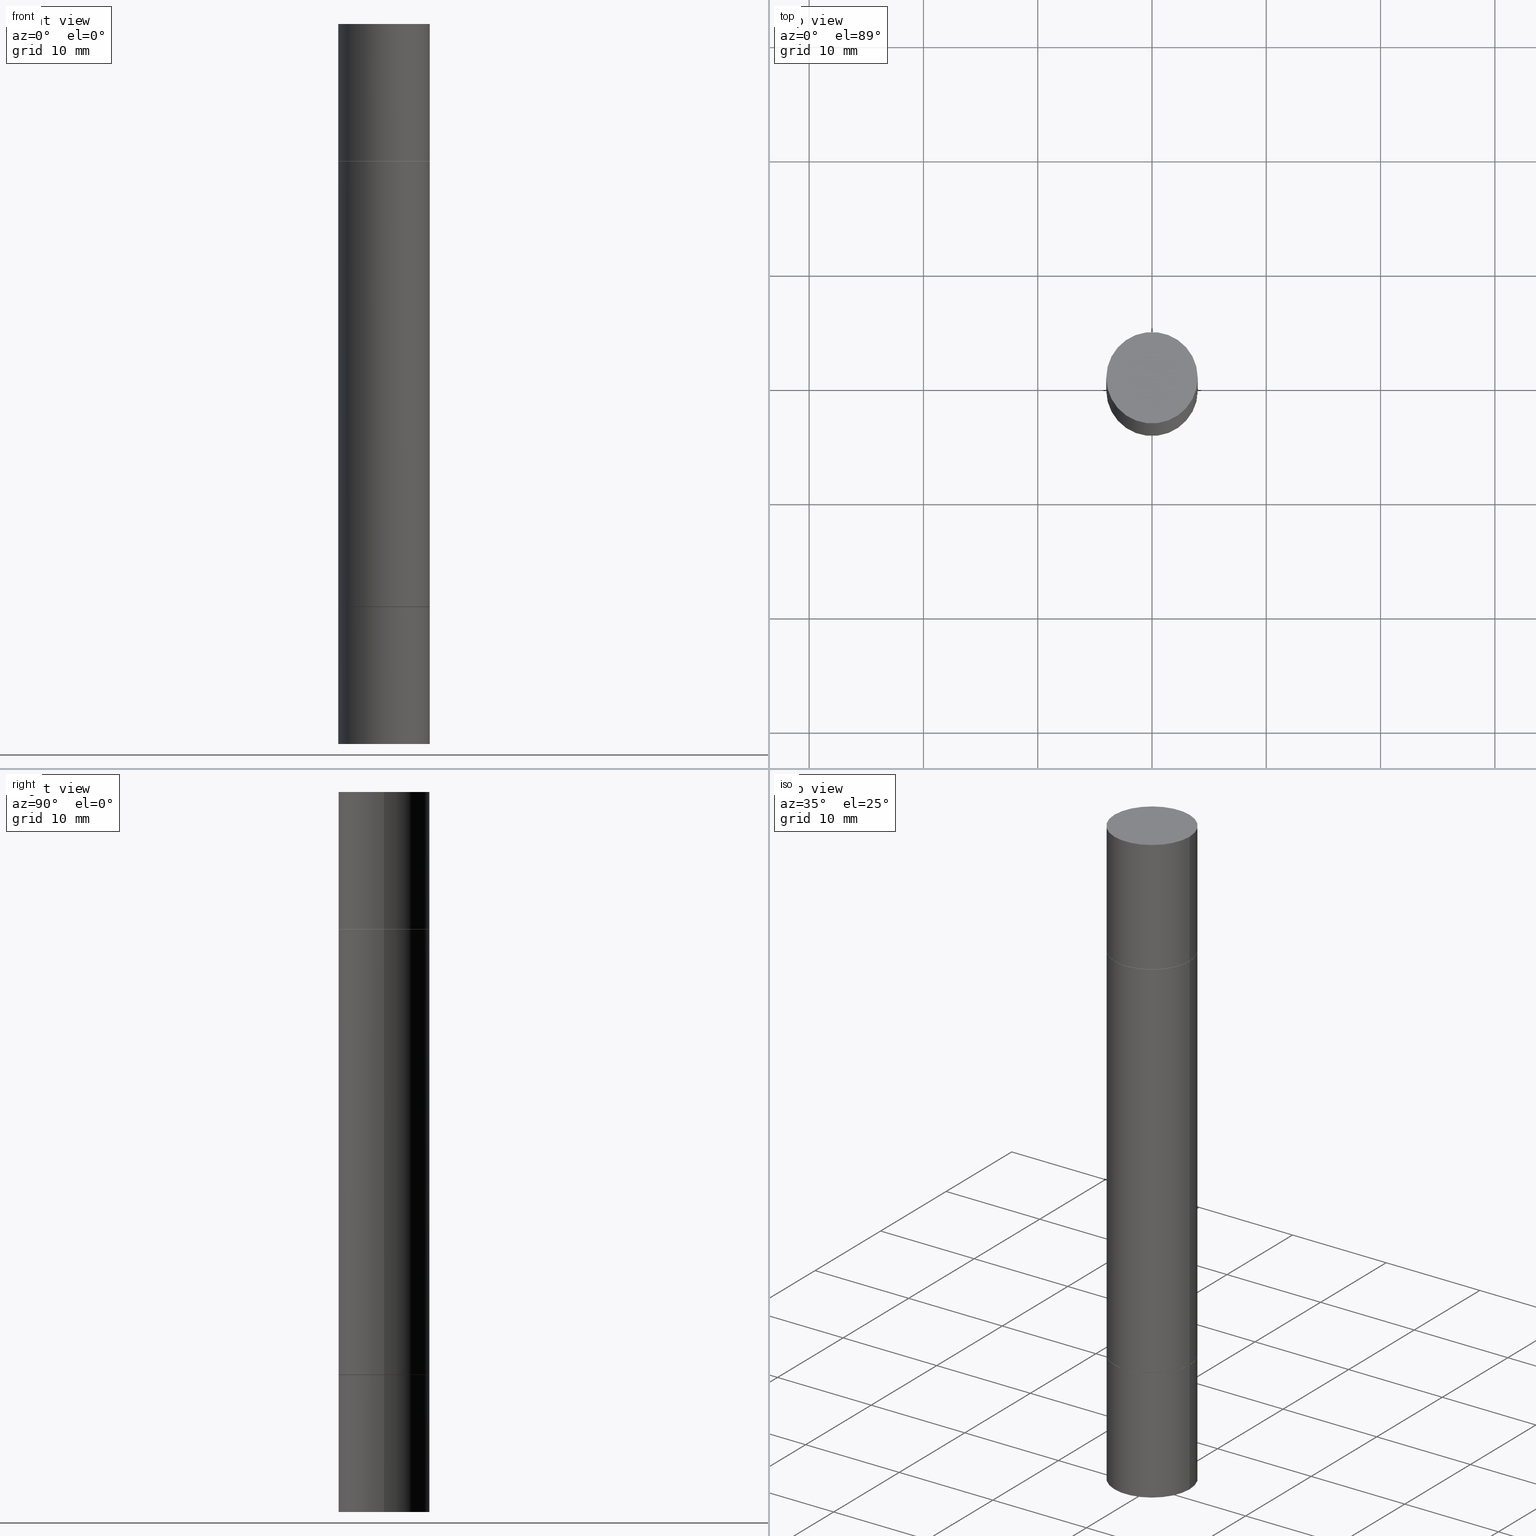
[diagram: canonical four-view strip — front | top / right | iso, engineering-drawing reading convention]
A machine part, canonical four-view strip (front | top / right | iso — engineering-drawing reading convention). The complete STEP part file that produces these views, byte-faithful:
ISO-10303-21;
HEADER;
FILE_DESCRIPTION (( 'STEP AP203' ),
    '1' );
FILE_NAME ('48937.STEP',
    '2024-03-04T15:49:40',
    ( '' ),
    ( '' ),
    'SwSTEP 2.0',
    'SolidWorks 2023',
    '' );
FILE_SCHEMA (( 'CONFIG_CONTROL_DESIGN' ));
ENDSEC;

DATA;
#1 = AXIS2_PLACEMENT_3D ( 'NONE', #396, #657, #606 ) ;
#2 = ORIENTED_EDGE ( 'NONE', *, *, #278, .T. ) ;
#3 = CIRCLE ( 'NONE', #155, 0.1575000000000000011 ) ;
#4 = ORIENTED_EDGE ( 'NONE', *, *, #618, .T. ) ;
#5 = DIRECTION ( 'NONE',  ( 1.000000000000000000, -6.982962677686265922E-15, 4.876176775795935793E-29 ) ) ;
#6 = EDGE_LOOP ( 'NONE', ( #229, #204, #585, #586 ) ) ;
#7 = EDGE_CURVE ( 'NONE', #89, #382, #326, .T. ) ;
#8 = ADVANCED_FACE ( 'NONE', ( #221 ), #637, .F. ) ;
#9 = DIRECTION ( 'NONE',  ( -2.445468806185136877E-29, -3.492890411551753071E-15, -1.000000000000000000 ) ) ;
#10 = VECTOR ( 'NONE', #134, 39.37007874015748143 ) ;
#11 = ORGANIZATION ( 'UNSPECIFIED', 'UNSPECIFIED', '' ) ;
#12 = DIRECTION ( 'NONE',  ( 1.000000000000000000, -6.982962677686267499E-15, 0.000000000000000000 ) ) ;
#13 = APPROVAL_ROLE ( '' ) ;
#14 = ORIENTED_EDGE ( 'NONE', *, *, #222, .T. ) ;
#15 = DIRECTION ( 'NONE',  ( -2.445468806185136597E-29, -3.492890411551752677E-15, -1.000000000000000000 ) ) ;
#16 = APPROVAL_STATUS ( 'not_yet_approved' ) ;
#17 = DIRECTION ( 'NONE',  ( -2.445468806185136597E-29, -3.492890411551752677E-15, -1.000000000000000000 ) ) ;
#18 = PERSON_AND_ORGANIZATION_ROLE ( 'creator' ) ;
#19 = CARTESIAN_POINT ( 'NONE',  ( 4.910256815939136430E-29, -7.010545380263152499E-15, -2.007900000000000240 ) ) ;
#20 = AXIS2_PLACEMENT_3D ( 'NONE', #293, #459, #453 ) ;
#21 = CC_DESIGN_APPROVAL ( #581, ( #579 ) ) ;
#22 = CC_DESIGN_DATE_AND_TIME_ASSIGNMENT ( #597, #113, ( #220 ) ) ;
#23 = CARTESIAN_POINT ( 'NONE',  ( -0.1575000000000000011, 2.572551809600735932E-16, -0.4723999999999995980 ) ) ;
#24 = DIRECTION ( 'NONE',  ( 1.000000000000000000, -6.982962677686265922E-15, 9.839502134516470631E-33 ) ) ;
#25 = DIRECTION ( 'NONE',  ( 2.445468806185136597E-29, 3.492890411551752677E-15, 1.000000000000000000 ) ) ;
#26 = PERSON_AND_ORGANIZATION ( #514, #11 ) ;
#27 = DIRECTION ( 'NONE',  ( -2.445468806185136597E-29, 3.491481338843145583E-15, 1.000000000000000000 ) ) ;
#28 = EDGE_CURVE ( 'NONE', #44, #619, #152, .T. ) ;
#29 = CARTESIAN_POINT ( 'NONE',  ( 6.065496279980994755E-29, -8.659921164732655335E-15, -2.480300000000000171 ) ) ;
#30 = DIRECTION ( 'NONE',  ( 2.445468806185136597E-29, 3.492890411551752677E-15, 1.000000000000000000 ) ) ;
#31 = AXIS2_PLACEMENT_3D ( 'NONE', #646, #70, #12 ) ;
#32 = CIRCLE ( 'NONE', #245, 0.1574999999999998901 ) ;
#33 = ORIENTED_EDGE ( 'NONE', *, *, #443, .T. ) ;
#34 = DIRECTION ( 'NONE',  ( 1.000000000000000000, -6.982962677686268288E-15, 0.000000000000000000 ) ) ;
#35 = ADVANCED_FACE ( 'NONE', ( #100 ), #599, .T. ) ;
#36 = ORIENTED_EDGE ( 'NONE', *, *, #222, .F. ) ;
#37 = DIRECTION ( 'NONE',  ( 1.000000000000000000, -6.982962677686267499E-15, 0.000000000000000000 ) ) ;
#38 = CARTESIAN_POINT ( 'NONE',  ( 4.910256815939136991E-29, -7.010545380263154077E-15, -2.007900000000000240 ) ) ;
#39 = CIRCLE ( 'NONE', #440, 0.1575000000000000011 ) ;
#40 = EDGE_LOOP ( 'NONE', ( #623, #641, #157, #247 ) ) ;
#41 = ADVANCED_FACE ( 'NONE', ( #534 ), #540, .T. ) ;
#42 = DIRECTION ( 'NONE',  ( 0.000000000000000000, 0.000000000000000000, 1.000000000000000000 ) ) ;
#43 = ORIENTED_EDGE ( 'NONE', *, *, #99, .T. ) ;
#44 = VERTEX_POINT ( 'NONE', #126 ) ;
#45 = CARTESIAN_POINT ( 'NONE',  ( 0.1575000000000000011, -2.748110590633054853E-15, -0.4723999999999995980 ) ) ;
#46 = DIMENSIONAL_EXPONENTS ( 1.000000000000000000, 0.000000000000000000, 0.000000000000000000, 0.000000000000000000, 0.000000000000000000, 0.000000000000000000, 0.000000000000000000 ) ;
#47 = DIRECTION ( 'NONE',  ( -2.438088387897959769E-29, -3.492890411551753071E-15, -1.000000000000000000 ) ) ;
#48 = ORIENTED_EDGE ( 'NONE', *, *, #410, .T. ) ;
#49 = CLOSED_SHELL ( 'NONE', ( #132, #35, #230, #161, #592, #129, #286, #654 ) ) ;
#50 = PLANE ( 'NONE',  #224 ) ;
#51 = ORIENTED_EDGE ( 'NONE', *, *, #610, .F. ) ;
#52 = APPROVAL_PERSON_ORGANIZATION ( #280, #581, #330 ) ;
#53 = EDGE_CURVE ( 'NONE', #616, #382, #82, .T. ) ;
#54 = EDGE_LOOP ( 'NONE', ( #545, #375 ) ) ;
#55 = EDGE_LOOP ( 'NONE', ( #444, #633, #640, #526 ) ) ;
#56 = DIRECTION ( 'NONE',  ( -2.445468806185136597E-29, 3.491481338843145583E-15, 1.000000000000000000 ) ) ;
#57 = ORIENTED_EDGE ( 'NONE', *, *, #125, .T. ) ;
#58 = DIRECTION ( 'NONE',  ( -2.445468806185136597E-29, -3.492890411551752677E-15, -1.000000000000000000 ) ) ;
#59 = VECTOR ( 'NONE', #504, 39.37007874015748143 ) ;
#60 = CIRCLE ( 'NONE', #233, 0.1575000000000000011 ) ;
#61 = ADVANCED_FACE ( 'NONE', ( #662 ), #118, .T. ) ;
#62 = CARTESIAN_POINT ( 'NONE',  ( -0.1575000000000000011, 2.572551809600735932E-16, -0.4723999999999995980 ) ) ;
#63 = FACE_OUTER_BOUND ( 'NONE', #55, .T. ) ;
#64 = PERSON_AND_ORGANIZATION_ROLE ( 'creator' ) ;
#65 = FACE_OUTER_BOUND ( 'NONE', #414, .T. ) ;
#66 = PERSON_AND_ORGANIZATION_ROLE ( 'classification_officer' ) ;
#67 = DATE_AND_TIME ( #175, #502 ) ;
#68 = LINE ( 'NONE', #604, #59 ) ;
#69 = FACE_OUTER_BOUND ( 'NONE', #277, .T. ) ;
#70 = DIRECTION ( 'NONE',  ( -2.445468806185136597E-29, 3.491481338843145583E-15, 1.000000000000000000 ) ) ;
#71 = EDGE_CURVE ( 'NONE', #308, #106, #324, .T. ) ;
#72 = CONICAL_SURFACE ( 'NONE', #186, 0.1565000000000000002, 0.7853981633972775267 ) ;
#73 = AXIS2_PLACEMENT_3D ( 'NONE', #561, #508, #187 ) ;
#74 = DIRECTION ( 'NONE',  ( 1.000000000000000000, -6.982962677686267499E-15, 0.000000000000000000 ) ) ;
#75 = DATE_AND_TIME ( #652, #95 ) ;
#76 = DIRECTION ( 'NONE',  ( 1.000000000000000000, -6.982962677686265922E-15, 0.000000000000000000 ) ) ;
#77 = FACE_OUTER_BOUND ( 'NONE', #262, .T. ) ;
#78 = CARTESIAN_POINT ( 'NONE',  ( 4.910256815939136991E-29, -1.648293968897466781E-15, -0.4723999999999993205 ) ) ;
#79 = CARTESIAN_POINT ( 'NONE',  ( -0.1565000000000000002, -5.898545998798597482E-15, -2.007900000000000240 ) ) ;
#80 = ORIENTED_EDGE ( 'NONE', *, *, #342, .F. ) ;
#81 = DIRECTION ( 'NONE',  ( 1.000000000000000000, -6.982962677686268288E-15, 0.000000000000000000 ) ) ;
#82 = CIRCLE ( 'NONE', #480, 0.1575000000000000011 ) ;
#83 = DIRECTION ( 'NONE',  ( 2.445468806185136597E-29, 3.492890411551752677E-15, 1.000000000000000000 ) ) ;
#84 = CIRCLE ( 'NONE', #344, 0.1575000000000000011 ) ;
#85 = DIRECTION ( 'NONE',  ( -1.000000000000000000, 6.982962677686265922E-15, -4.876176775795935793E-29 ) ) ;
#86 = FACE_OUTER_BOUND ( 'NONE', #40, .T. ) ;
#87 = LINE ( 'NONE', #306, #120 ) ;
#88 = DIRECTION ( 'NONE',  ( 1.000000000000000000, -6.982962677686268288E-15, 0.000000000000000000 ) ) ;
#89 = VERTEX_POINT ( 'NONE', #335 ) ;
#90 = CARTESIAN_POINT ( 'NONE',  ( 4.910256815939136430E-29, -1.648293968897467768E-15, -0.4723999999999995980 ) ) ;
#91 = LINE ( 'NONE', #486, #391 ) ;
#92 = APPROVAL ( #275, 'UNSPECIFIED' ) ;
#93 = ADVANCED_FACE ( 'NONE', ( #63 ), #495, .T. ) ;
#94 = ORIENTED_EDGE ( 'NONE', *, *, #189, .T. ) ;
#95 = LOCAL_TIME ( 10, 49, 40.00000000000000000, #505 ) ;
#96 = VERTEX_POINT ( 'NONE', #629 ) ;
#97 = ORIENTED_EDGE ( 'NONE', *, *, #447, .F. ) ;
#98 = FACE_OUTER_BOUND ( 'NONE', #489, .T. ) ;
#99 = EDGE_CURVE ( 'NONE', #619, #546, #158, .T. ) ;
#100 = FACE_OUTER_BOUND ( 'NONE', #549, .T. ) ;
#101 = LINE ( 'NONE', #374, #179 ) ;
#102 = CARTESIAN_POINT ( 'NONE',  ( 4.910256815939136430E-29, -7.010545380263152499E-15, -2.007900000000000240 ) ) ;
#103 = ORIENTED_EDGE ( 'NONE', *, *, #433, .F. ) ;
#104 = FACE_OUTER_BOUND ( 'NONE', #135, .T. ) ;
#105 = AXIS2_PLACEMENT_3D ( 'NONE', #450, #568, #609 ) ;
#106 = VERTEX_POINT ( 'NONE', #145 ) ;
#107 = CIRCLE ( 'NONE', #130, 0.1575000000000000011 ) ;
#108 =( CONVERSION_BASED_UNIT ( 'INCH', #314 ) LENGTH_UNIT ( ) NAMED_UNIT ( #46 ) );
#109 = ORIENTED_EDGE ( 'NONE', *, *, #184, .F. ) ;
#110 = DIRECTION ( 'NONE',  ( 2.438088387897959769E-29, 3.492890411551753071E-15, 1.000000000000000000 ) ) ;
#111 = DIRECTION ( 'NONE',  ( 0.000000000000000000, 1.000000000000000000, -3.492185875197449524E-15 ) ) ;
#112 = CC_DESIGN_DATE_AND_TIME_ASSIGNMENT ( #442, #651, ( #591 ) ) ;
#113 = DATE_TIME_ROLE ( 'creation_date' ) ;
#114 = ORIENTED_EDGE ( 'NONE', *, *, #133, .T. ) ;
#115 = ORIENTED_EDGE ( 'NONE', *, *, #116, .T. ) ;
#116 = EDGE_CURVE ( 'NONE', #546, #494, #91, .T. ) ;
#117 = PERSON_AND_ORGANIZATION ( #514, #11 ) ;
#118 = CYLINDRICAL_SURFACE ( 'NONE', #1, 0.1575000000000000011 ) ;
#119 = AXIS2_PLACEMENT_3D ( 'NONE', #19, #434, #562 ) ;
#120 = VECTOR ( 'NONE', #636, 39.37007874015748143 ) ;
#121 = DIRECTION ( 'NONE',  ( -2.445468806185136597E-29, 3.491481338843145583E-15, 1.000000000000000000 ) ) ;
#122 = PERSON_AND_ORGANIZATION_ROLE ( 'design_owner' ) ;
#123 = DIRECTION ( 'NONE',  ( -2.445468806185136597E-29, 3.491481338843145583E-15, 1.000000000000000000 ) ) ;
#124 = ADVANCED_FACE ( 'NONE', ( #413 ), #246, .T. ) ;
#125 = EDGE_CURVE ( 'NONE', #529, #264, #613, .T. ) ;
#126 = CARTESIAN_POINT ( 'NONE',  ( -0.1565000000000000002, -5.729422284531128791E-16, -0.4723999999999993205 ) ) ;
#127 = AXIS2_PLACEMENT_3D ( 'NONE', #603, #558, #111 ) ;
#128 = DIRECTION ( 'NONE',  ( 2.445468806185136597E-29, 3.492890411551752677E-15, 1.000000000000000000 ) ) ;
#129 = ADVANCED_FACE ( 'NONE', ( #664 ), #520, .T. ) ;
#130 = AXIS2_PLACEMENT_3D ( 'NONE', #420, #196, #580 ) ;
#131 = CARTESIAN_POINT ( 'NONE',  ( 4.910256815939136430E-29, -1.648293968897467768E-15, -0.4723999999999995980 ) ) ;
#132 = ADVANCED_FACE ( 'NONE', ( #464 ), #72, .T. ) ;
#133 = EDGE_CURVE ( 'NONE', #674, #215, #68, .T. ) ;
#134 = DIRECTION ( 'NONE',  ( -2.445468806185136877E-29, -3.492890411551753071E-15, -1.000000000000000000 ) ) ;
#135 = EDGE_LOOP ( 'NONE', ( #477, #250 ) ) ;
#136 = CARTESIAN_POINT ( 'NONE',  ( 0.1575000000000000011, -8.106870520659896184E-15, -2.006899999999999906 ) ) ;
#137 = ADVANCED_BREP_SHAPE_REPRESENTATION ( '48937', ( #200, #437, #203, #439, #656, #392 ), #516 ) ;
#138 = CLOSED_SHELL ( 'NONE', ( #583, #41, #241, #634, #329, #260 ) ) ;
#139 = CARTESIAN_POINT ( 'NONE',  ( 0.1575000000000000011, -9.761485247987819407E-15, -2.480299999999999727 ) ) ;
#140 = DIRECTION ( 'NONE',  ( 2.445468806185136597E-29, 3.492890411551752677E-15, 1.000000000000000000 ) ) ;
#141 = AXIS2_PLACEMENT_3D ( 'NONE', #231, #121, #165 ) ;
#142 = VECTOR ( 'NONE', #511, 39.37007874015748143 ) ;
#143 = ORIENTED_EDGE ( 'NONE', *, *, #7, .T. ) ;
#144 = PLANE ( 'NONE',  #661 ) ;
#145 = CARTESIAN_POINT ( 'NONE',  ( 0.1575000000000000011, -9.759737786468242027E-15, -2.480300000000000171 ) ) ;
#146 = DIRECTION ( 'NONE',  ( 0.000000000000000000, 1.000000000000000000, -3.469013325287955660E-15 ) ) ;
#147 = ORIENTED_EDGE ( 'NONE', *, *, #576, .F. ) ;
#148 = EDGE_LOOP ( 'NONE', ( #315, #14, #385, #225 ) ) ;
#149 = CARTESIAN_POINT ( 'NONE',  ( 0.1575000000000000011, -1.098069160216006353E-15, 5.463695987328526437E-16 ) ) ;
#150 = DIRECTION ( 'NONE',  ( 2.445468806185136597E-29, 3.492890411551752677E-15, 1.000000000000000000 ) ) ;
#151 = ORIENTED_EDGE ( 'NONE', *, *, #184, .T. ) ;
#152 = CIRCLE ( 'NONE', #551, 0.1565000000000000002 ) ;
#153 = CIRCLE ( 'NONE', #554, 0.1575000000000000011 ) ;
#154 = ADVANCED_FACE ( 'NONE', ( #183 ), #507, .T. ) ;
#155 = AXIS2_PLACEMENT_3D ( 'NONE', #304, #192, #256 ) ;
#156 = APPLICATION_PROTOCOL_DEFINITION ( 'international standard', 'config_control_design', 1994, #254 ) ;
#157 = ORIENTED_EDGE ( 'NONE', *, *, #547, .T. ) ;
#158 = LINE ( 'NONE', #362, #492 ) ;
#159 = DIRECTION ( 'NONE',  ( 1.000000000000000000, -6.982962677686265922E-15, 0.000000000000000000 ) ) ;
#160 = ORIENTED_EDGE ( 'NONE', *, *, #367, .F. ) ;
#161 = ADVANCED_FACE ( 'NONE', ( #242 ), #563, .F. ) ;
#162 = FACE_OUTER_BOUND ( 'NONE', #271, .T. ) ;
#163 = ORIENTED_EDGE ( 'NONE', *, *, #206, .T. ) ;
#164 = ORIENTED_EDGE ( 'NONE', *, *, #537, .F. ) ;
#165 = DIRECTION ( 'NONE',  ( 1.000000000000000000, -6.982962677686268288E-15, 0.000000000000000000 ) ) ;
#166 = CLOSED_SHELL ( 'NONE', ( #124, #622, #648, #93 ) ) ;
#167 = AXIS2_PLACEMENT_3D ( 'NONE', #131, #408, #24 ) ;
#168 = FACE_OUTER_BOUND ( 'NONE', #54, .T. ) ;
#169 = AXIS2_PLACEMENT_3D ( 'NONE', #38, #415, #37 ) ;
#170 = CARTESIAN_POINT ( 'NONE',  ( 1.099816621735635798E-15, 0.1574999999999983635, -0.4724000000000001531 ) ) ;
#171 = CC_DESIGN_PERSON_AND_ORGANIZATION_ASSIGNMENT ( #644, #122, ( #318 ) ) ;
#172 = FACE_OUTER_BOUND ( 'NONE', #377, .T. ) ;
#173 = DIRECTION ( 'NONE',  ( 1.000000000000000000, -6.982962677686267499E-15, 0.000000000000000000 ) ) ;
#174 = PERSON_AND_ORGANIZATION ( #514, #11 ) ;
#175 = CALENDAR_DATE ( 2024, 4, 3 ) ;
#176 = ORIENTED_EDGE ( 'NONE', *, *, #213, .T. ) ;
#177 = CARTESIAN_POINT ( 'NONE',  ( 0.000000000000000000, -8.661668626252231138E-15, -2.480299999999999727 ) ) ;
#178 = AXIS2_PLACEMENT_3D ( 'NONE', #460, #665, #88 ) ;
#179 = VECTOR ( 'NONE', #417, 39.37007874015748143 ) ;
#180 = CARTESIAN_POINT ( 'NONE',  ( 6.065496279980994755E-29, 1.747461519580534218E-18, 5.463695987328526437E-16 ) ) ;
#181 = EDGE_CURVE ( 'NONE', #674, #522, #455, .T. ) ;
#182 = CARTESIAN_POINT ( 'NONE',  ( 4.907811347132950827E-29, -1.651786859309018332E-15, -0.4733999999999996544 ) ) ;
#183 = FACE_OUTER_BOUND ( 'NONE', #303, .T. ) ;
#184 = EDGE_CURVE ( 'NONE', #619, #44, #660, .T. ) ;
#185 = CARTESIAN_POINT ( 'NONE',  ( -0.1574999999999998901, -7.581140191603216936E-15, -2.480299999999999727 ) ) ;
#186 = AXIS2_PLACEMENT_3D ( 'NONE', #595, #600, #539 ) ;
#187 = DIRECTION ( 'NONE',  ( 1.000000000000000000, -6.982962677686268288E-15, 0.000000000000000000 ) ) ;
#188 = LOCAL_TIME ( 10, 49, 40.00000000000000000, #279 ) ;
#189 = EDGE_CURVE ( 'NONE', #538, #529, #153, .T. ) ;
#190 = CARTESIAN_POINT ( 'NONE',  ( 0.000000000000000000, 0.000000000000000000, 0.000000000000000000 ) ) ;
#191 = DIRECTION ( 'NONE',  ( 2.445468806185136597E-29, 3.492890411551752677E-15, 1.000000000000000000 ) ) ;
#192 = DIRECTION ( 'NONE',  ( 2.445468806185136597E-29, 3.492890411551752677E-15, 1.000000000000000000 ) ) ;
#193 = EDGE_LOOP ( 'NONE', ( #151, #327 ) ) ;
#194 = DIRECTION ( 'NONE',  ( 2.438088387897960049E-29, -3.491481338843145188E-15, -1.000000000000000000 ) ) ;
#195 = AXIS2_PLACEMENT_3D ( 'NONE', #351, #519, #34 ) ;
#196 = DIRECTION ( 'NONE',  ( -2.445468806185136597E-29, 3.491481338843145583E-15, 1.000000000000000000 ) ) ;
#197 = DIRECTION ( 'NONE',  ( 1.000000000000000000, -6.982962677686267499E-15, 0.000000000000000000 ) ) ;
#198 = AXIS2_PLACEMENT_3D ( 'NONE', #596, #15, #339 ) ;
#199 = LOCAL_TIME ( 10, 49, 40.00000000000000000, #228 ) ;
#200 = MANIFOLD_SOLID_BREP ( 'Body-Move/Copy2[1]', #312 ) ;
#201 = ORIENTED_EDGE ( 'NONE', *, *, #301, .F. ) ;
#202 = CARTESIAN_POINT ( 'NONE',  ( 0.1565000000000000002, -8.103379039321054754E-15, -2.007900000000000240 ) ) ;
#203 = MANIFOLD_SOLID_BREP ( 'Mirror1[3]', #323 ) ;
#204 = ORIENTED_EDGE ( 'NONE', *, *, #625, .T. ) ;
#205 = EDGE_CURVE ( 'NONE', #106, #611, #302, .T. ) ;
#206 = EDGE_CURVE ( 'NONE', #488, #522, #237, .T. ) ;
#207 = DIRECTION ( 'NONE',  ( 1.000000000000000000, -6.982962677686261189E-15, 0.000000000000000000 ) ) ;
#208 = DIRECTION ( 'NONE',  ( 1.000000000000000000, 0.000000000000000000, 0.000000000000000000 ) ) ;
#209 = ORIENTED_EDGE ( 'NONE', *, *, #116, .F. ) ;
#210 = DIRECTION ( 'NONE',  ( 1.000000000000000000, -6.982962677686268288E-15, 0.000000000000000000 ) ) ;
#211 = AXIS2_PLACEMENT_3D ( 'NONE', #347, #123, #647 ) ;
#212 = AXIS2_PLACEMENT_3D ( 'NONE', #345, #607, #457 ) ;
#213 = EDGE_CURVE ( 'NONE', #529, #538, #257, .T. ) ;
#214 = FACE_OUTER_BOUND ( 'NONE', #422, .T. ) ;
#215 = VERTEX_POINT ( 'NONE', #294 ) ;
#216 = EDGE_LOOP ( 'NONE', ( #235, #316 ) ) ;
#217 = CARTESIAN_POINT ( 'NONE',  ( 0.1575000000000000011, -8.110362001998739191E-15, -2.007900000000000240 ) ) ;
#218 = CARTESIAN_POINT ( 'NONE',  ( 4.910256815939136430E-29, -1.648293968897467768E-15, -0.4723999999999995980 ) ) ;
#219 = ORIENTED_EDGE ( 'NONE', *, *, #253, .T. ) ;
#220 = PRODUCT_DEFINITION ( 'UNKNOWN', '', #579, #425 ) ;
#221 = FACE_OUTER_BOUND ( 'NONE', #632, .T. ) ;
#222 = EDGE_CURVE ( 'NONE', #96, #517, #307, .T. ) ;
#223 = AXIS2_PLACEMENT_3D ( 'NONE', #468, #418, #74 ) ;
#224 = AXIS2_PLACEMENT_3D ( 'NONE', #102, #584, #5 ) ;
#225 = ORIENTED_EDGE ( 'NONE', *, *, #389, .F. ) ;
#226 = ORIENTED_EDGE ( 'NONE', *, *, #278, .F. ) ;
#227 = APPROVAL_ROLE ( '' ) ;
#228 = COORDINATED_UNIVERSAL_TIME_OFFSET ( 5, 0, .BEHIND. ) ;
#229 = ORIENTED_EDGE ( 'NONE', *, *, #28, .F. ) ;
#230 = ADVANCED_FACE ( 'NONE', ( #252 ), #672, .T. ) ;
#231 = CARTESIAN_POINT ( 'NONE',  ( 4.907811347132950827E-29, -7.007053898924308703E-15, -2.006899999999999906 ) ) ;
#232 = AXIS2_PLACEMENT_3D ( 'NONE', #398, #458, #605 ) ;
#233 = AXIS2_PLACEMENT_3D ( 'NONE', #90, #463, #667 ) ;
#234 = PLANE ( 'NONE',  #105 ) ;
#235 = ORIENTED_EDGE ( 'NONE', *, *, #452, .F. ) ;
#236 = PLANE ( 'NONE',  #212 ) ;
#237 = LINE ( 'NONE', #346, #243 ) ;
#238 = DIRECTION ( 'NONE',  ( 1.000000000000000000, -6.982962677686268288E-15, 0.000000000000000000 ) ) ;
#239 = PERSON_AND_ORGANIZATION_ROLE ( 'design_supplier' ) ;
#240 = CC_DESIGN_PERSON_AND_ORGANIZATION_ASSIGNMENT ( #174, #66, ( #591 ) ) ;
#241 = ADVANCED_FACE ( 'NONE', ( #65 ), #556, .F. ) ;
#242 = FACE_OUTER_BOUND ( 'NONE', #193, .T. ) ;
#243 = VECTOR ( 'NONE', #521, 39.37007874015748143 ) ;
#244 = DIRECTION ( 'NONE',  ( 1.000000000000000000, -6.982962677686268288E-15, 0.000000000000000000 ) ) ;
#245 = AXIS2_PLACEMENT_3D ( 'NONE', #363, #370, #146 ) ;
#246 = CYLINDRICAL_SURFACE ( 'NONE', #20, 0.1575000000000000011 ) ;
#247 = ORIENTED_EDGE ( 'NONE', *, *, #181, .T. ) ;
#248 = DIRECTION ( 'NONE',  ( 1.000000000000000000, -6.982962677686267499E-15, 0.000000000000000000 ) ) ;
#249 = DIRECTION ( 'NONE',  ( 1.000000000000000000, -6.982962677686261189E-15, 0.000000000000000000 ) ) ;
#250 = ORIENTED_EDGE ( 'NONE', *, *, #443, .F. ) ;
#251 = CARTESIAN_POINT ( 'NONE',  ( -0.1575000000000000011, 2.572551809600735932E-16, 5.463695987328556019E-16 ) ) ;
#252 = FACE_OUTER_BOUND ( 'NONE', #6, .T. ) ;
#253 = EDGE_CURVE ( 'NONE', #494, #517, #626, .T. ) ;
#254 = APPLICATION_CONTEXT ( 'configuration controlled 3d designs of mechanical parts and assemblies' ) ;
#255 = ORIENTED_EDGE ( 'NONE', *, *, #349, .F. ) ;
#256 = DIRECTION ( 'NONE',  ( 1.000000000000000000, -6.982962677686268288E-15, 0.000000000000000000 ) ) ;
#257 = CIRCLE ( 'NONE', #569, 0.1575000000000000011 ) ;
#258 = FACE_OUTER_BOUND ( 'NONE', #620, .T. ) ;
#259 = APPROVAL_PERSON_ORGANIZATION ( #650, #409, #227 ) ;
#260 = ADVANCED_FACE ( 'NONE', ( #172 ), #379, .T. ) ;
#261 = ORIENTED_EDGE ( 'NONE', *, *, #610, .T. ) ;
#262 = EDGE_LOOP ( 'NONE', ( #4, #490 ) ) ;
#263 = DIRECTION ( 'NONE',  ( 1.000000000000000000, -6.982962677686265922E-15, 4.876176775795935232E-29 ) ) ;
#264 = VERTEX_POINT ( 'NONE', #548 ) ;
#265 = AXIS2_PLACEMENT_3D ( 'NONE', #337, #56, #273 ) ;
#266 = AXIS2_PLACEMENT_3D ( 'NONE', #29, #608, #350 ) ;
#267 =( LENGTH_UNIT ( ) NAMED_UNIT ( * ) SI_UNIT ( $, .METRE. ) );
#268 = EDGE_LOOP ( 'NONE', ( #176, #94 ) ) ;
#269 = DIRECTION ( 'NONE',  ( -1.000000000000000000, 6.982962677686265922E-15, -9.839502134516470631E-33 ) ) ;
#270 = ORIENTED_EDGE ( 'NONE', *, *, #205, .T. ) ;
#271 = EDGE_LOOP ( 'NONE', ( #582, #226 ) ) ;
#272 = ORIENTED_EDGE ( 'NONE', *, *, #618, .F. ) ;
#273 = DIRECTION ( 'NONE',  ( 1.000000000000000000, -6.982962677686267499E-15, 0.000000000000000000 ) ) ;
#274 = AXIS2_PLACEMENT_3D ( 'NONE', #566, #359, #197 ) ;
#275 = APPROVAL_STATUS ( 'not_yet_approved' ) ;
#276 = CC_DESIGN_APPROVAL ( #409, ( #591 ) ) ;
#277 = EDGE_LOOP ( 'NONE', ( #311, #295, #272, #432 ) ) ;
#278 = EDGE_CURVE ( 'NONE', #96, #473, #333, .T. ) ;
#279 = COORDINATED_UNIVERSAL_TIME_OFFSET ( 5, 0, .BEHIND. ) ;
#280 = PERSON_AND_ORGANIZATION ( #514, #11 ) ;
#281 = CARTESIAN_POINT ( 'NONE',  ( 4.910256815939136430E-29, -1.648293968897467768E-15, -0.4723999999999995980 ) ) ;
#282 = FACE_OUTER_BOUND ( 'NONE', #578, .T. ) ;
#283 = CALENDAR_DATE ( 2024, 4, 3 ) ;
#284 = APPROVAL_DATE_TIME ( #67, #92 ) ;
#285 = CARTESIAN_POINT ( 'NONE',  ( 4.910256815939136991E-29, -1.648293968897466781E-15, -0.4723999999999993205 ) ) ;
#286 = ADVANCED_FACE ( 'NONE', ( #282 ), #402, .T. ) ;
#287 = AXIS2_PLACEMENT_3D ( 'NONE', #397, #348, #81 ) ;
#288 = LOCAL_TIME ( 10, 49, 40.00000000000000000, #338 ) ;
#289 = AXIS2_PLACEMENT_3D ( 'NONE', #190, #27, #406 ) ;
#290 = LINE ( 'NONE', #565, #438 ) ;
#291 = DIRECTION ( 'NONE',  ( -2.445468806185136877E-29, 3.491481338843145188E-15, 1.000000000000000000 ) ) ;
#292 = APPROVAL_DATE_TIME ( #75, #581 ) ;
#293 = CARTESIAN_POINT ( 'NONE',  ( 0.000000000000000000, -8.661668626252231138E-15, -2.480299999999999727 ) ) ;
#294 = CARTESIAN_POINT ( 'NONE',  ( 0.1574999999999998901, -4.090690342573258113E-15, -1.240149999999999864 ) ) ;
#295 = ORIENTED_EDGE ( 'NONE', *, *, #602, .T. ) ;
#296 = CARTESIAN_POINT ( 'NONE',  ( -0.1575000000000000011, -7.581140191603215359E-15, -2.480299999999999727 ) ) ;
#297 = DIRECTION ( 'NONE',  ( -2.445468806185136597E-29, -3.492890411551752677E-15, -1.000000000000000000 ) ) ;
#298 = AXIS2_PLACEMENT_3D ( 'NONE', #386, #58, #320 ) ;
#299 = VERTEX_POINT ( 'NONE', #62 ) ;
#300 = AXIS2_PLACEMENT_3D ( 'NONE', #177, #393, #210 ) ;
#301 = EDGE_CURVE ( 'NONE', #522, #553, #500, .T. ) ;
#302 = LINE ( 'NONE', #573, #528 ) ;
#303 = EDGE_LOOP ( 'NONE', ( #97, #680, #57, #570 ) ) ;
#304 = CARTESIAN_POINT ( 'NONE',  ( 4.910256815939136430E-29, -1.648293968897467768E-15, -0.4723999999999995980 ) ) ;
#305 = CC_DESIGN_PERSON_AND_ORGANIZATION_ASSIGNMENT ( #390, #64, ( #579 ) ) ;
#306 = CARTESIAN_POINT ( 'NONE',  ( -0.1565000000000000002, -5.746260322462221211E-16, -0.4723999999999993205 ) ) ;
#307 = LINE ( 'NONE', #79, #515 ) ;
#308 = VERTEX_POINT ( 'NONE', #552 ) ;
#309 = DIRECTION ( 'NONE',  ( -2.445468806185136877E-29, -3.492890411551753071E-15, -1.000000000000000000 ) ) ;
#310 = EDGE_CURVE ( 'NONE', #598, #611, #426, .T. ) ;
#311 = ORIENTED_EDGE ( 'NONE', *, *, #452, .T. ) ;
#312 = CLOSED_SHELL ( 'NONE', ( #436, #513, #421, #668 ) ) ;
#313 = AXIS2_PLACEMENT_3D ( 'NONE', #593, #476, #263 ) ;
#314 = LENGTH_MEASURE_WITH_UNIT ( LENGTH_MEASURE( 0.02539999999999999897 ), #267 );
#315 = ORIENTED_EDGE ( 'NONE', *, *, #496, .T. ) ;
#316 = ORIENTED_EDGE ( 'NONE', *, *, #71, .F. ) ;
#317 = PLANE ( 'NONE',  #615 ) ;
#318 = PRODUCT ( '48937', '48937', '', ( #372 ) ) ;
#319 = ORIENTED_EDGE ( 'NONE', *, *, #389, .T. ) ;
#320 = DIRECTION ( 'NONE',  ( 1.000000000000000000, -6.982962677686261189E-15, 0.000000000000000000 ) ) ;
#321 = CARTESIAN_POINT ( 'NONE',  ( 0.1565000000000000002, -2.741127627955367656E-15, -0.4723999999999993205 ) ) ;
#322 = VERTEX_POINT ( 'NONE', #407 ) ;
#323 = CLOSED_SHELL ( 'NONE', ( #61, #336, #8, #154 ) ) ;
#324 = CIRCLE ( 'NONE', #211, 0.1575000000000000011 ) ;
#325 = CC_DESIGN_APPROVAL ( #92, ( #220 ) ) ;
#326 = LINE ( 'NONE', #544, #401 ) ;
#327 = ORIENTED_EDGE ( 'NONE', *, *, #28, .T. ) ;
#328 = CARTESIAN_POINT ( 'NONE',  ( 4.910256815939136991E-29, -1.648293968897466781E-15, -0.4723999999999993205 ) ) ;
#329 = ADVANCED_FACE ( 'NONE', ( #86 ), #649, .T. ) ;
#330 = APPROVAL_ROLE ( '' ) ;
#331 = EDGE_LOOP ( 'NONE', ( #103, #424, #115, #219 ) ) ;
#332 = ORIENTED_EDGE ( 'NONE', *, *, #433, .T. ) ;
#333 = CIRCLE ( 'NONE', #265, 0.1565000000000000002 ) ;
#334 = AXIS2_PLACEMENT_3D ( 'NONE', #218, #47, #543 ) ;
#335 = CARTESIAN_POINT ( 'NONE',  ( -0.1575000000000000011, 2.572551809600735932E-16, 5.463695987328556019E-16 ) ) ;
#336 = ADVANCED_FACE ( 'NONE', ( #506 ), #234, .T. ) ;
#337 = CARTESIAN_POINT ( 'NONE',  ( 4.910256815939136991E-29, -7.010545380263154077E-15, -2.007900000000000240 ) ) ;
#338 = COORDINATED_UNIVERSAL_TIME_OFFSET ( 5, 0, .BEHIND. ) ;
#339 = DIRECTION ( 'NONE',  ( 1.000000000000000000, -6.982962677686261189E-15, 0.000000000000000000 ) ) ;
#340 = SHAPE_DEFINITION_REPRESENTATION ( #677, #137 ) ;
#341 = CARTESIAN_POINT ( 'NONE',  ( 6.065496279980994755E-29, 1.747461519580534218E-18, 5.463695987328526437E-16 ) ) ;
#342 = EDGE_CURVE ( 'NONE', #522, #674, #614, .T. ) ;
#343 = AXIS2_PLACEMENT_3D ( 'NONE', #663, #191, #248 ) ;
#344 = AXIS2_PLACEMENT_3D ( 'NONE', #180, #128, #658 ) ;
#345 = CARTESIAN_POINT ( 'NONE',  ( 1.099816621735635798E-15, 0.1574999999999930067, -2.007900000000000684 ) ) ;
#346 = CARTESIAN_POINT ( 'NONE',  ( -0.1565000000000000002, -5.746260322462221211E-16, -0.4723999999999993205 ) ) ;
#347 = CARTESIAN_POINT ( 'NONE',  ( 6.065496279980994755E-29, -8.659921164732655335E-15, -2.480300000000000171 ) ) ;
#348 = DIRECTION ( 'NONE',  ( 2.445468806185136597E-29, 3.492890411551752677E-15, 1.000000000000000000 ) ) ;
#349 = EDGE_CURVE ( 'NONE', #517, #494, #541, .T. ) ;
#350 = DIRECTION ( 'NONE',  ( 1.000000000000000000, -6.982962677686261977E-15, 0.000000000000000000 ) ) ;
#351 = CARTESIAN_POINT ( 'NONE',  ( 4.907811347132950827E-29, -1.651786859309018332E-15, -0.4733999999999996544 ) ) ;
#352 = DIRECTION ( 'NONE',  ( -2.445468806185136597E-29, -3.492890411551752677E-15, -1.000000000000000000 ) ) ;
#353 = CARTESIAN_POINT ( 'NONE',  ( 4.907811347132950827E-29, -1.651786859309018332E-15, -0.4733999999999996544 ) ) ;
#354 = ORIENTED_EDGE ( 'NONE', *, *, #133, .F. ) ;
#355 = AXIS2_PLACEMENT_3D ( 'NONE', #78, #297, #512 ) ;
#356 = DIRECTION ( 'NONE',  ( 1.000000000000000000, -6.982962677686267499E-15, 0.000000000000000000 ) ) ;
#357 = APPROVAL_PERSON_ORGANIZATION ( #117, #92, #13 ) ;
#358 = DIRECTION ( 'NONE',  ( -1.000000000000000000, 6.982962677686265922E-15, -9.839502134516470631E-33 ) ) ;
#359 = DIRECTION ( 'NONE',  ( 2.445468806185136597E-29, 3.492890411551752677E-15, 1.000000000000000000 ) ) ;
#360 = ORIENTED_EDGE ( 'NONE', *, *, #310, .F. ) ;
#361 = DIRECTION ( 'NONE',  ( 0.7071067811864267805, -7.407546758113824138E-15, -0.7071067811866682540 ) ) ;
#362 = CARTESIAN_POINT ( 'NONE',  ( 0.1565000000000000002, -2.741127627955367656E-15, -0.4723999999999993205 ) ) ;
#363 = CARTESIAN_POINT ( 'NONE',  ( 3.032748139990496817E-29, -4.329960582366326879E-15, -1.240149999999999864 ) ) ;
#364 = ORIENTED_EDGE ( 'NONE', *, *, #410, .F. ) ;
#365 = DIRECTION ( 'NONE',  ( 0.000000000000000000, 1.000000000000000000, -3.469013325287955660E-15 ) ) ;
#366 = CARTESIAN_POINT ( 'NONE',  ( 6.065496279980994755E-29, 1.747461519580534218E-18, 5.463695987328526437E-16 ) ) ;
#367 = EDGE_CURVE ( 'NONE', #488, #594, #501, .T. ) ;
#368 = ORIENTED_EDGE ( 'NONE', *, *, #71, .T. ) ;
#369 = AXIS2_PLACEMENT_3D ( 'NONE', #659, #352, #249 ) ;
#370 = DIRECTION ( 'NONE',  ( -0.000000000000000000, -3.492185875197449130E-15, -1.000000000000000000 ) ) ;
#371 = VECTOR ( 'NONE', #394, 39.37007874015748143 ) ;
#372 = MECHANICAL_CONTEXT ( 'NONE', #254, 'mechanical' ) ;
#373 = ORIENTED_EDGE ( 'NONE', *, *, #384, .T. ) ;
#374 = CARTESIAN_POINT ( 'NONE',  ( -0.1575000000000000011, 1.119104808822157801E-15, -7.747322767151475583E-30 ) ) ;
#375 = ORIENTED_EDGE ( 'NONE', *, *, #367, .T. ) ;
#376 = ORIENTED_EDGE ( 'NONE', *, *, #380, .F. ) ;
#377 = EDGE_LOOP ( 'NONE', ( #201, #679, #114, #164 ) ) ;
#378 = DIRECTION ( 'NONE',  ( -2.445468806185136877E-29, -3.492890411551753071E-15, -1.000000000000000000 ) ) ;
#379 = CYLINDRICAL_SURFACE ( 'NONE', #198, 0.1574999999999998901 ) ;
#380 = EDGE_CURVE ( 'NONE', #478, #546, #590, .T. ) ;
#381 = DIRECTION ( 'NONE',  ( 2.438088387897959769E-29, 3.492890411551753071E-15, 1.000000000000000000 ) ) ;
#382 = VERTEX_POINT ( 'NONE', #23 ) ;
#383 = DIRECTION ( 'NONE',  ( -1.000000000000000000, 6.982962677686265922E-15, -9.839502134516470631E-33 ) ) ;
#384 = EDGE_CURVE ( 'NONE', #546, #478, #589, .T. ) ;
#385 = ORIENTED_EDGE ( 'NONE', *, *, #253, .F. ) ;
#386 = CARTESIAN_POINT ( 'NONE',  ( 0.000000000000000000, -8.661668626252231138E-15, -2.480299999999999727 ) ) ;
#387 = APPROVAL_DATE_TIME ( #445, #409 ) ;
#388 = CALENDAR_DATE ( 2024, 4, 3 ) ;
#389 = EDGE_CURVE ( 'NONE', #473, #494, #290, .T. ) ;
#390 = PERSON_AND_ORGANIZATION ( #514, #11 ) ;
#391 = VECTOR ( 'NONE', #378, 39.37007874015748143 ) ;
#392 = AXIS2_PLACEMENT_3D ( 'NONE', #587, #42, #208 ) ;
#393 = DIRECTION ( 'NONE',  ( -2.445468806185136597E-29, -3.492890411551752677E-15, -1.000000000000000000 ) ) ;
#394 = DIRECTION ( 'NONE',  ( -2.445468806185136877E-29, -3.492890411551753071E-15, -1.000000000000000000 ) ) ;
#395 = CARTESIAN_POINT ( 'NONE',  ( -0.1574999999999998901, -7.581140191603216936E-15, -2.480299999999999727 ) ) ;
#396 = CARTESIAN_POINT ( 'NONE',  ( 0.000000000000000000, -8.661668626252231138E-15, -2.480299999999999727 ) ) ;
#397 = CARTESIAN_POINT ( 'NONE',  ( 4.907811347132950827E-29, -1.651786859309018332E-15, -0.4733999999999996544 ) ) ;
#398 = CARTESIAN_POINT ( 'NONE',  ( 4.907811347132950827E-29, -7.007053898924308703E-15, -2.006899999999999906 ) ) ;
#399 = APPLICATION_CONTEXT ( 'configuration controlled 3d designs of mechanical parts and assemblies' ) ;
#400 = CYLINDRICAL_SURFACE ( 'NONE', #289, 0.1575000000000000011 ) ;
#401 = VECTOR ( 'NONE', #9, 39.37007874015748143 ) ;
#402 = CONICAL_SURFACE ( 'NONE', #31, 0.1565000000000000002, 0.7853981633972775267 ) ;
#403 = AXIS2_PLACEMENT_3D ( 'NONE', #471, #419, #365 ) ;
#404 = LINE ( 'NONE', #296, #142 ) ;
#405 = DIRECTION ( 'NONE',  ( 1.000000000000000000, -6.982962677686265922E-15, 0.000000000000000000 ) ) ;
#406 = DIRECTION ( 'NONE',  ( 1.000000000000000000, -6.982962677686265922E-15, 4.876176775795935232E-29 ) ) ;
#407 = CARTESIAN_POINT ( 'NONE',  ( 0.1575000000000000011, -1.098069160216006353E-15, 5.463695987328526437E-16 ) ) ;
#408 = DIRECTION ( 'NONE',  ( -2.438088387897959769E-29, -3.492890411551753071E-15, -1.000000000000000000 ) ) ;
#409 = APPROVAL ( #497, 'UNSPECIFIED' ) ;
#410 = EDGE_CURVE ( 'NONE', #89, #322, #84, .T. ) ;
#411 = ORIENTED_EDGE ( 'NONE', *, *, #625, .F. ) ;
#412 = CARTESIAN_POINT ( 'NONE',  ( -0.1575000000000000011, -3.249432147717308339E-15, -2.006899999999999906 ) ) ;
#413 = FACE_OUTER_BOUND ( 'NONE', #435, .T. ) ;
#414 = EDGE_LOOP ( 'NONE', ( #261, #475 ) ) ;
#415 = DIRECTION ( 'NONE',  ( -2.445468806185136597E-29, 3.491481338843145583E-15, 1.000000000000000000 ) ) ;
#416 = CIRCLE ( 'NONE', #403, 0.1574999999999998901 ) ;
#417 = DIRECTION ( 'NONE',  ( -2.445468806185136877E-29, 3.491481338843145188E-15, 1.000000000000000000 ) ) ;
#418 = DIRECTION ( 'NONE',  ( -2.445468806185136597E-29, -3.492890411551752677E-15, -1.000000000000000000 ) ) ;
#419 = DIRECTION ( 'NONE',  ( -0.000000000000000000, -3.492185875197449130E-15, -1.000000000000000000 ) ) ;
#420 = CARTESIAN_POINT ( 'NONE',  ( 4.910256815939136430E-29, -7.010545380263152499E-15, -2.007900000000000240 ) ) ;
#421 = ADVANCED_FACE ( 'NONE', ( #77 ), #236, .F. ) ;
#422 = EDGE_LOOP ( 'NONE', ( #669, #368, #270, #360 ) ) ;
#423 = CARTESIAN_POINT ( 'NONE',  ( 0.1565000000000000002, -2.741127627955367656E-15, -0.4723999999999993205 ) ) ;
#424 = ORIENTED_EDGE ( 'NONE', *, *, #384, .F. ) ;
#425 = DESIGN_CONTEXT ( 'detailed design', #399, 'design' ) ;
#426 = CIRCLE ( 'NONE', #119, 0.1575000000000000011 ) ;
#427 = CARTESIAN_POINT ( 'NONE',  ( 1.099816621735635798E-15, 0.1574999999999983635, -0.4724000000000001531 ) ) ;
#428 = ORIENTED_EDGE ( 'NONE', *, *, #349, .T. ) ;
#429 = DIRECTION ( 'NONE',  ( 2.438088387897959769E-29, 3.492890411551753071E-15, 1.000000000000000000 ) ) ;
#430 = CC_DESIGN_PERSON_AND_ORGANIZATION_ASSIGNMENT ( #498, #18, ( #220 ) ) ;
#431 =( NAMED_UNIT ( * ) SI_UNIT ( $, .STERADIAN. ) SOLID_ANGLE_UNIT ( ) );
#432 = ORIENTED_EDGE ( 'NONE', *, *, #205, .F. ) ;
#433 = EDGE_CURVE ( 'NONE', #478, #517, #653, .T. ) ;
#434 = DIRECTION ( 'NONE',  ( -2.445468806185136597E-29, 3.491481338843145583E-15, 1.000000000000000000 ) ) ;
#435 = EDGE_LOOP ( 'NONE', ( #364, #143, #33, #666 ) ) ;
#436 = ADVANCED_FACE ( 'NONE', ( #69 ), #400, .T. ) ;
#437 = MANIFOLD_SOLID_BREP ( 'Mirror1[1]', #138 ) ;
#438 = VECTOR ( 'NONE', #499, 39.37007874015748143 ) ;
#439 = MANIFOLD_SOLID_BREP ( 'Mirror1[4]', #166 ) ;
#440 = AXIS2_PLACEMENT_3D ( 'NONE', #366, #150, #159 ) ;
#441 = DIRECTION ( 'NONE',  ( 2.445468806185136597E-29, 3.492890411551752677E-15, 1.000000000000000000 ) ) ;
#442 = DATE_AND_TIME ( #283, #288 ) ;
#443 = EDGE_CURVE ( 'NONE', #382, #616, #673, .T. ) ;
#444 = ORIENTED_EDGE ( 'NONE', *, *, #7, .F. ) ;
#445 = DATE_AND_TIME ( #643, #188 ) ;
#446 = AXIS2_PLACEMENT_3D ( 'NONE', #182, #30, #244 ) ;
#447 = EDGE_CURVE ( 'NONE', #538, #299, #404, .T. ) ;
#448 = AXIS2_PLACEMENT_3D ( 'NONE', #630, #481, #207 ) ;
#449 = DIRECTION ( 'NONE',  ( 1.000000000000000000, -6.982962677686267499E-15, 0.000000000000000000 ) ) ;
#450 = CARTESIAN_POINT ( 'NONE',  ( 1.099816621735647434E-15, 0.1574999999999999456, 0.000000000000000000 ) ) ;
#451 = DIRECTION ( 'NONE',  ( 1.000000000000000000, -6.982962677686268288E-15, 0.000000000000000000 ) ) ;
#452 = EDGE_CURVE ( 'NONE', #106, #308, #470, .T. ) ;
#453 = DIRECTION ( 'NONE',  ( 1.000000000000000000, -6.982962677686268288E-15, 0.000000000000000000 ) ) ;
#454 = AXIS2_PLACEMENT_3D ( 'NONE', #170, #110, #383 ) ;
#455 = CIRCLE ( 'NONE', #577, 0.1575000000000000011 ) ;
#456 = AXIS2_PLACEMENT_3D ( 'NONE', #612, #523, #356 ) ;
#457 = DIRECTION ( 'NONE',  ( -1.000000000000000000, 6.982962677686265922E-15, -4.876176775795935793E-29 ) ) ;
#458 = DIRECTION ( 'NONE',  ( -2.445468806185136597E-29, 3.491481338843145583E-15, 1.000000000000000000 ) ) ;
#459 = DIRECTION ( 'NONE',  ( -2.445468806185136597E-29, -3.492890411551752677E-15, -1.000000000000000000 ) ) ;
#460 = CARTESIAN_POINT ( 'NONE',  ( 0.000000000000000000, -8.661668626252231138E-15, -2.480299999999999727 ) ) ;
#461 = EDGE_CURVE ( 'NONE', #322, #616, #567, .T. ) ;
#462 = ORIENTED_EDGE ( 'NONE', *, *, #342, .T. ) ;
#463 = DIRECTION ( 'NONE',  ( 2.445468806185136597E-29, 3.492890411551752677E-15, 1.000000000000000000 ) ) ;
#464 = FACE_OUTER_BOUND ( 'NONE', #148, .T. ) ;
#465 = ORIENTED_EDGE ( 'NONE', *, *, #532, .T. ) ;
#466 = CARTESIAN_POINT ( 'NONE',  ( 0.1575000000000000011, -2.751603481044606995E-15, -0.4733999999999996544 ) ) ;
#467 = DIRECTION ( 'NONE',  ( 0.7071067811864267805, -7.407546758113824138E-15, -0.7071067811866682540 ) ) ;
#468 = CARTESIAN_POINT ( 'NONE',  ( 4.910256815939136991E-29, -1.648293968897466781E-15, -0.4723999999999993205 ) ) ;
#469 = ORIENTED_EDGE ( 'NONE', *, *, #532, .F. ) ;
#470 = CIRCLE ( 'NONE', #266, 0.1575000000000000011 ) ;
#471 = CARTESIAN_POINT ( 'NONE',  ( 3.032748139990496817E-29, -4.329960582366326879E-15, -1.240149999999999864 ) ) ;
#472 = FACE_OUTER_BOUND ( 'NONE', #474, .T. ) ;
#473 = VERTEX_POINT ( 'NONE', #202 ) ;
#474 = EDGE_LOOP ( 'NONE', ( #411, #109, #43, #373 ) ) ;
#475 = ORIENTED_EDGE ( 'NONE', *, *, #537, .T. ) ;
#476 = DIRECTION ( 'NONE',  ( -2.445468806185136597E-29, 3.491481338843145583E-15, 1.000000000000000000 ) ) ;
#477 = ORIENTED_EDGE ( 'NONE', *, *, #53, .F. ) ;
#478 = VERTEX_POINT ( 'NONE', #675 ) ;
#479 = UNCERTAINTY_MEASURE_WITH_UNIT (LENGTH_MEASURE( 1.000000000000000082E-05 ), #108, 'distance_accuracy_value', 'NONE');
#480 = AXIS2_PLACEMENT_3D ( 'NONE', #281, #25, #238 ) ;
#481 = DIRECTION ( 'NONE',  ( -2.445468806185136597E-29, -3.492890411551752677E-15, -1.000000000000000000 ) ) ;
#482 = CIRCLE ( 'NONE', #169, 0.1565000000000000002 ) ;
#483 = CC_DESIGN_SECURITY_CLASSIFICATION ( #591, ( #579 ) ) ;
#484 =( NAMED_UNIT ( * ) PLANE_ANGLE_UNIT ( ) SI_UNIT ( $, .RADIAN. ) );
#485 = ORIENTED_EDGE ( 'NONE', *, *, #301, .T. ) ;
#486 = CARTESIAN_POINT ( 'NONE',  ( 0.1574999999999998901, -9.761485247987817829E-15, -2.480299999999999727 ) ) ;
#487 = CARTESIAN_POINT ( 'NONE',  ( 0.1575000000000000011, -2.751603481044606995E-15, -0.4733999999999996544 ) ) ;
#488 = VERTEX_POINT ( 'NONE', #617 ) ;
#489 = EDGE_LOOP ( 'NONE', ( #627, #48 ) ) ;
#490 = ORIENTED_EDGE ( 'NONE', *, *, #310, .T. ) ;
#491 = ORIENTED_EDGE ( 'NONE', *, *, #547, .F. ) ;
#492 = VECTOR ( 'NONE', #467, 39.37007874015748143 ) ;
#493 = VECTOR ( 'NONE', #309, 39.37007874015748143 ) ;
#494 = VERTEX_POINT ( 'NONE', #136 ) ;
#495 = CYLINDRICAL_SURFACE ( 'NONE', #300, 0.1575000000000000011 ) ;
#496 = EDGE_CURVE ( 'NONE', #473, #96, #482, .T. ) ;
#497 = APPROVAL_STATUS ( 'not_yet_approved' ) ;
#498 = PERSON_AND_ORGANIZATION ( #514, #11 ) ;
#499 = DIRECTION ( 'NONE',  ( 0.7071067811864267805, -2.468850131080992517E-15, 0.7071067811866682540 ) ) ;
#500 = LINE ( 'NONE', #395, #638 ) ;
#501 = CIRCLE ( 'NONE', #343, 0.1565000000000000002 ) ;
#502 = LOCAL_TIME ( 10, 49, 40.00000000000000000, #555 ) ;
#503 = EDGE_CURVE ( 'NONE', #594, #488, #542, .T. ) ;
#504 = DIRECTION ( 'NONE',  ( -2.445468806185136877E-29, -3.492890411551753071E-15, -1.000000000000000000 ) ) ;
#505 = COORDINATED_UNIVERSAL_TIME_OFFSET ( 5, 0, .BEHIND. ) ;
#506 = FACE_OUTER_BOUND ( 'NONE', #268, .T. ) ;
#507 = CYLINDRICAL_SURFACE ( 'NONE', #178, 0.1575000000000000011 ) ;
#508 = DIRECTION ( 'NONE',  ( 2.445468806185136597E-29, 3.492890411551752677E-15, 1.000000000000000000 ) ) ;
#509 = CARTESIAN_POINT ( 'NONE',  ( 6.065496279980994755E-29, 1.747461519580534218E-18, 5.463695987328526437E-16 ) ) ;
#510 = EDGE_LOOP ( 'NONE', ( #550, #635, #465, #588 ) ) ;
#511 = DIRECTION ( 'NONE',  ( -2.445468806185136877E-29, -3.492890411551753071E-15, -1.000000000000000000 ) ) ;
#512 = DIRECTION ( 'NONE',  ( 1.000000000000000000, -6.982962677686267499E-15, 0.000000000000000000 ) ) ;
#513 = ADVANCED_FACE ( 'NONE', ( #621 ), #144, .T. ) ;
#514 = PERSON ( 'UNSPECIFIED', 'UNSPECIFIED', 'UNSPECIFIED', ('UNSPECIFIED'), ('UNSPECIFIED'), ('UNSPECIFIED') ) ;
#515 = VECTOR ( 'NONE', #524, 39.37007874015748143 ) ;
#516 =( GEOMETRIC_REPRESENTATION_CONTEXT ( 3 ) GLOBAL_UNCERTAINTY_ASSIGNED_CONTEXT ( ( #479 ) ) GLOBAL_UNIT_ASSIGNED_CONTEXT ( ( #108, #484, #431 ) ) REPRESENTATION_CONTEXT ( 'NONE', 'WORKASPACE' ) );
#517 = VERTEX_POINT ( 'NONE', #412 ) ;
#518 = CARTESIAN_POINT ( 'NONE',  ( 0.1575000000000000011, -9.761485247987819407E-15, -2.480299999999999727 ) ) ;
#519 = DIRECTION ( 'NONE',  ( 2.445468806185136597E-29, 3.492890411551752677E-15, 1.000000000000000000 ) ) ;
#520 = CYLINDRICAL_SURFACE ( 'NONE', #369, 0.1574999999999998901 ) ;
#521 = DIRECTION ( 'NONE',  ( -0.7071067811864267805, 2.381258160590016583E-15, -0.7071067811866682540 ) ) ;
#522 = VERTEX_POINT ( 'NONE', #527 ) ;
#523 = DIRECTION ( 'NONE',  ( 2.445468806185136597E-29, 3.492890411551752677E-15, 1.000000000000000000 ) ) ;
#524 = DIRECTION ( 'NONE',  ( -0.7071067811864267805, 7.493145998869918709E-15, 0.7071067811866682540 ) ) ;
#525 = SECURITY_CLASSIFICATION_LEVEL ( 'unclassified' ) ;
#526 = ORIENTED_EDGE ( 'NONE', *, *, #53, .T. ) ;
#527 = CARTESIAN_POINT ( 'NONE',  ( -0.1575000000000000011, -5.712584246600035385E-16, -0.4733999999999996544 ) ) ;
#528 = VECTOR ( 'NONE', #291, 39.37007874015748143 ) ;
#529 = VERTEX_POINT ( 'NONE', #149 ) ;
#530 = AXIS2_PLACEMENT_3D ( 'NONE', #427, #381, #269 ) ;
#531 = CYLINDRICAL_SURFACE ( 'NONE', #448, 0.1574999999999998901 ) ;
#532 = EDGE_CURVE ( 'NONE', #299, #264, #3, .T. ) ;
#533 = PLANE ( 'NONE',  #334 ) ;
#534 = FACE_OUTER_BOUND ( 'NONE', #645, .T. ) ;
#535 = CC_DESIGN_PERSON_AND_ORGANIZATION_ASSIGNMENT ( #26, #239, ( #579 ) ) ;
#536 = CARTESIAN_POINT ( 'NONE',  ( 1.099816621735647434E-15, 0.1574999999999999456, 0.000000000000000000 ) ) ;
#537 = EDGE_CURVE ( 'NONE', #553, #215, #416, .T. ) ;
#538 = VERTEX_POINT ( 'NONE', #251 ) ;
#539 = DIRECTION ( 'NONE',  ( 1.000000000000000000, -6.982962677686267499E-15, 0.000000000000000000 ) ) ;
#540 = CONICAL_SURFACE ( 'NONE', #559, 0.1565000000000000002, 0.7853981633972775267 ) ;
#541 = CIRCLE ( 'NONE', #232, 0.1575000000000000011 ) ;
#542 = CIRCLE ( 'NONE', #456, 0.1565000000000000002 ) ;
#543 = DIRECTION ( 'NONE',  ( 1.000000000000000000, -6.982962677686265922E-15, 9.839502134516470631E-33 ) ) ;
#544 = CARTESIAN_POINT ( 'NONE',  ( -0.1575000000000000011, -7.581140191603215359E-15, -2.480299999999999727 ) ) ;
#545 = ORIENTED_EDGE ( 'NONE', *, *, #503, .T. ) ;
#546 = VERTEX_POINT ( 'NONE', #466 ) ;
#547 = EDGE_CURVE ( 'NONE', #594, #674, #575, .T. ) ;
#548 = CARTESIAN_POINT ( 'NONE',  ( 0.1575000000000000011, -2.748110590633054853E-15, -0.4723999999999995980 ) ) ;
#549 = EDGE_LOOP ( 'NONE', ( #376, #332, #428, #209 ) ) ;
#550 = ORIENTED_EDGE ( 'NONE', *, *, #189, .F. ) ;
#551 = AXIS2_PLACEMENT_3D ( 'NONE', #328, #441, #173 ) ;
#552 = CARTESIAN_POINT ( 'NONE',  ( -0.1575000000000000011, -6.716128463675745525E-15, -2.480300000000000171 ) ) ;
#553 = VERTEX_POINT ( 'NONE', #574 ) ;
#554 = AXIS2_PLACEMENT_3D ( 'NONE', #341, #83, #405 ) ;
#555 = COORDINATED_UNIVERSAL_TIME_OFFSET ( 5, 0, .BEHIND. ) ;
#556 = PLANE ( 'NONE',  #127 ) ;
#557 = APPLICATION_PROTOCOL_DEFINITION ( 'international standard', 'config_control_design', 1994, #399 ) ;
#558 = DIRECTION ( 'NONE',  ( 0.000000000000000000, 3.492185875197449524E-15, 1.000000000000000000 ) ) ;
#559 = AXIS2_PLACEMENT_3D ( 'NONE', #285, #17, #449 ) ;
#560 = VECTOR ( 'NONE', #361, 39.37007874015748143 ) ;
#561 = CARTESIAN_POINT ( 'NONE',  ( 4.910256815939136430E-29, -1.648293968897467768E-15, -0.4723999999999995980 ) ) ;
#562 = DIRECTION ( 'NONE',  ( 1.000000000000000000, -6.982962677686268288E-15, 0.000000000000000000 ) ) ;
#563 = PLANE ( 'NONE',  #167 ) ;
#564 = PRODUCT_RELATED_PRODUCT_CATEGORY ( 'detail', '', ( #318 ) ) ;
#565 = CARTESIAN_POINT ( 'NONE',  ( 0.1565000000000000002, -8.103379039321054754E-15, -2.007900000000000240 ) ) ;
#566 = CARTESIAN_POINT ( 'NONE',  ( 4.910256815939136991E-29, -1.648293968897466781E-15, -0.4723999999999993205 ) ) ;
#567 = LINE ( 'NONE', #518, #493 ) ;
#568 = DIRECTION ( 'NONE',  ( 2.438088387897959769E-29, 3.492890411551753071E-15, 1.000000000000000000 ) ) ;
#569 = AXIS2_PLACEMENT_3D ( 'NONE', #509, #655, #76 ) ;
#570 = ORIENTED_EDGE ( 'NONE', *, *, #576, .T. ) ;
#571 = CARTESIAN_POINT ( 'NONE',  ( 1.099816621735647434E-15, 0.1574999999999913136, -2.480300000000001059 ) ) ;
#572 = DIRECTION ( 'NONE',  ( -2.445468806185136597E-29, -3.492890411551752677E-15, -1.000000000000000000 ) ) ;
#573 = CARTESIAN_POINT ( 'NONE',  ( 0.1575000000000000011, -1.099816621735586889E-15, 7.679978421878598033E-30 ) ) ;
#574 = CARTESIAN_POINT ( 'NONE',  ( -0.1574999999999998901, -1.910345286188656432E-15, -1.240149999999999864 ) ) ;
#575 = LINE ( 'NONE', #670, #560 ) ;
#576 = EDGE_CURVE ( 'NONE', #264, #299, #60, .T. ) ;
#577 = AXIS2_PLACEMENT_3D ( 'NONE', #353, #140, #451 ) ;
#578 = EDGE_LOOP ( 'NONE', ( #36, #2, #319, #255 ) ) ;
#579 = PRODUCT_DEFINITION_FORMATION_WITH_SPECIFIED_SOURCE ( 'ANY', '', #318, .NOT_KNOWN. ) ;
#580 = DIRECTION ( 'NONE',  ( 1.000000000000000000, -6.982962677686268288E-15, 0.000000000000000000 ) ) ;
#581 = APPROVAL ( #16, 'UNSPECIFIED' ) ;
#582 = ORIENTED_EDGE ( 'NONE', *, *, #496, .F. ) ;
#583 = ADVANCED_FACE ( 'NONE', ( #258 ), #531, .T. ) ;
#584 = DIRECTION ( 'NONE',  ( -2.438088387897960049E-29, 3.491481338843145188E-15, 1.000000000000000000 ) ) ;
#585 = ORIENTED_EDGE ( 'NONE', *, *, #380, .T. ) ;
#586 = ORIENTED_EDGE ( 'NONE', *, *, #99, .F. ) ;
#587 = CARTESIAN_POINT ( 'NONE',  ( 0.000000000000000000, 0.000000000000000000, 0.000000000000000000 ) ) ;
#588 = ORIENTED_EDGE ( 'NONE', *, *, #125, .F. ) ;
#589 = CIRCLE ( 'NONE', #287, 0.1575000000000000011 ) ;
#590 = CIRCLE ( 'NONE', #195, 0.1575000000000000011 ) ;
#591 = SECURITY_CLASSIFICATION ( '', '', #525 ) ;
#592 = ADVANCED_FACE ( 'NONE', ( #472 ), #639, .T. ) ;
#593 = CARTESIAN_POINT ( 'NONE',  ( 0.000000000000000000, 0.000000000000000000, 0.000000000000000000 ) ) ;
#594 = VERTEX_POINT ( 'NONE', #423 ) ;
#595 = CARTESIAN_POINT ( 'NONE',  ( 4.910256815939136991E-29, -7.010545380263154077E-15, -2.007900000000000240 ) ) ;
#596 = CARTESIAN_POINT ( 'NONE',  ( 0.000000000000000000, -8.661668626252231138E-15, -2.480299999999999727 ) ) ;
#597 = DATE_AND_TIME ( #388, #199 ) ;
#598 = VERTEX_POINT ( 'NONE', #624 ) ;
#599 = CYLINDRICAL_SURFACE ( 'NONE', #298, 0.1574999999999998901 ) ;
#600 = DIRECTION ( 'NONE',  ( -2.445468806185136597E-29, 3.491481338843145583E-15, 1.000000000000000000 ) ) ;
#601 = EDGE_CURVE ( 'NONE', #322, #89, #39, .T. ) ;
#602 = EDGE_CURVE ( 'NONE', #308, #598, #101, .T. ) ;
#603 = CARTESIAN_POINT ( 'NONE',  ( 0.000000000000000000, 0.000000000000000000, -1.240149999999999864 ) ) ;
#604 = CARTESIAN_POINT ( 'NONE',  ( 0.1574999999999998901, -9.761485247987817829E-15, -2.480299999999999727 ) ) ;
#605 = DIRECTION ( 'NONE',  ( 1.000000000000000000, -6.982962677686268288E-15, 0.000000000000000000 ) ) ;
#606 = DIRECTION ( 'NONE',  ( 1.000000000000000000, -6.982962677686268288E-15, 0.000000000000000000 ) ) ;
#607 = DIRECTION ( 'NONE',  ( 2.438088387897960049E-29, -3.491481338843145188E-15, -1.000000000000000000 ) ) ;
#608 = DIRECTION ( 'NONE',  ( -2.445468806185136597E-29, 3.491481338843145583E-15, 1.000000000000000000 ) ) ;
#609 = DIRECTION ( 'NONE',  ( -1.000000000000000000, 6.982962677686265922E-15, -9.839502134516470631E-33 ) ) ;
#610 = EDGE_CURVE ( 'NONE', #215, #553, #32, .T. ) ;
#611 = VERTEX_POINT ( 'NONE', #217 ) ;
#612 = CARTESIAN_POINT ( 'NONE',  ( 4.910256815939136991E-29, -1.648293968897466781E-15, -0.4723999999999993205 ) ) ;
#613 = LINE ( 'NONE', #139, #10 ) ;
#614 = CIRCLE ( 'NONE', #446, 0.1575000000000000011 ) ;
#615 = AXIS2_PLACEMENT_3D ( 'NONE', #536, #429, #358 ) ;
#616 = VERTEX_POINT ( 'NONE', #45 ) ;
#617 = CARTESIAN_POINT ( 'NONE',  ( -0.1565000000000000002, -5.729422284531128791E-16, -0.4723999999999993205 ) ) ;
#618 = EDGE_CURVE ( 'NONE', #611, #598, #107, .T. ) ;
#619 = VERTEX_POINT ( 'NONE', #321 ) ;
#620 = EDGE_LOOP ( 'NONE', ( #80, #485, #51, #354 ) ) ;
#621 = FACE_OUTER_BOUND ( 'NONE', #216, .T. ) ;
#622 = ADVANCED_FACE ( 'NONE', ( #98 ), #317, .T. ) ;
#623 = ORIENTED_EDGE ( 'NONE', *, *, #206, .F. ) ;
#624 = CARTESIAN_POINT ( 'NONE',  ( -0.1575000000000000011, -6.716128463675745525E-15, -2.007900000000000240 ) ) ;
#625 = EDGE_CURVE ( 'NONE', #44, #478, #87, .T. ) ;
#626 = CIRCLE ( 'NONE', #141, 0.1575000000000000011 ) ;
#627 = ORIENTED_EDGE ( 'NONE', *, *, #601, .T. ) ;
#628 = AXIS2_PLACEMENT_3D ( 'NONE', #676, #572, #671 ) ;
#629 = CARTESIAN_POINT ( 'NONE',  ( -0.1565000000000000002, -5.893247544450374291E-15, -2.007900000000000240 ) ) ;
#630 = CARTESIAN_POINT ( 'NONE',  ( 0.000000000000000000, -8.661668626252231138E-15, -2.480299999999999727 ) ) ;
#631 = PLANE ( 'NONE',  #530 ) ;
#632 = EDGE_LOOP ( 'NONE', ( #147, #469 ) ) ;
#633 = ORIENTED_EDGE ( 'NONE', *, *, #601, .F. ) ;
#634 = ADVANCED_FACE ( 'NONE', ( #168 ), #533, .F. ) ;
#635 = ORIENTED_EDGE ( 'NONE', *, *, #447, .T. ) ;
#636 = DIRECTION ( 'NONE',  ( -0.7071067811864267805, 2.381258160590016583E-15, -0.7071067811866682540 ) ) ;
#637 = PLANE ( 'NONE',  #454 ) ;
#638 = VECTOR ( 'NONE', #642, 39.37007874015748143 ) ;
#639 = CONICAL_SURFACE ( 'NONE', #628, 0.1565000000000000002, 0.7853981633972775267 ) ;
#640 = ORIENTED_EDGE ( 'NONE', *, *, #461, .T. ) ;
#641 = ORIENTED_EDGE ( 'NONE', *, *, #503, .F. ) ;
#642 = DIRECTION ( 'NONE',  ( -2.445468806185136877E-29, -3.492890411551753071E-15, -1.000000000000000000 ) ) ;
#643 = CALENDAR_DATE ( 2024, 4, 3 ) ;
#644 = PERSON_AND_ORGANIZATION ( #514, #11 ) ;
#645 = EDGE_LOOP ( 'NONE', ( #160, #163, #462, #491 ) ) ;
#646 = CARTESIAN_POINT ( 'NONE',  ( 4.910256815939136991E-29, -7.010545380263154077E-15, -2.007900000000000240 ) ) ;
#647 = DIRECTION ( 'NONE',  ( 1.000000000000000000, -6.982962677686261977E-15, 0.000000000000000000 ) ) ;
#648 = ADVANCED_FACE ( 'NONE', ( #104 ), #631, .F. ) ;
#649 = CONICAL_SURFACE ( 'NONE', #355, 0.1565000000000000002, 0.7853981633972775267 ) ;
#650 = PERSON_AND_ORGANIZATION ( #514, #11 ) ;
#651 = DATE_TIME_ROLE ( 'classification_date' ) ;
#652 = CALENDAR_DATE ( 2024, 4, 3 ) ;
#653 = LINE ( 'NONE', #185, #371 ) ;
#654 = ADVANCED_FACE ( 'NONE', ( #162 ), #50, .F. ) ;
#655 = DIRECTION ( 'NONE',  ( 2.445468806185136597E-29, 3.492890411551752677E-15, 1.000000000000000000 ) ) ;
#656 = MANIFOLD_SOLID_BREP ( 'Combine1', #49 ) ;
#657 = DIRECTION ( 'NONE',  ( -2.445468806185136597E-29, -3.492890411551752677E-15, -1.000000000000000000 ) ) ;
#658 = DIRECTION ( 'NONE',  ( 1.000000000000000000, -6.982962677686265922E-15, 0.000000000000000000 ) ) ;
#659 = CARTESIAN_POINT ( 'NONE',  ( 0.000000000000000000, -8.661668626252231138E-15, -2.480299999999999727 ) ) ;
#660 = CIRCLE ( 'NONE', #274, 0.1565000000000000002 ) ;
#661 = AXIS2_PLACEMENT_3D ( 'NONE', #571, #194, #85 ) ;
#662 = FACE_OUTER_BOUND ( 'NONE', #510, .T. ) ;
#663 = CARTESIAN_POINT ( 'NONE',  ( 4.910256815939136991E-29, -1.648293968897466781E-15, -0.4723999999999993205 ) ) ;
#664 = FACE_OUTER_BOUND ( 'NONE', #331, .T. ) ;
#665 = DIRECTION ( 'NONE',  ( -2.445468806185136597E-29, -3.492890411551752677E-15, -1.000000000000000000 ) ) ;
#666 = ORIENTED_EDGE ( 'NONE', *, *, #461, .F. ) ;
#667 = DIRECTION ( 'NONE',  ( 1.000000000000000000, -6.982962677686268288E-15, 0.000000000000000000 ) ) ;
#668 = ADVANCED_FACE ( 'NONE', ( #214 ), #678, .T. ) ;
#669 = ORIENTED_EDGE ( 'NONE', *, *, #602, .F. ) ;
#670 = CARTESIAN_POINT ( 'NONE',  ( 0.1565000000000000002, -2.741127627955367656E-15, -0.4723999999999993205 ) ) ;
#671 = DIRECTION ( 'NONE',  ( 1.000000000000000000, -6.982962677686267499E-15, 0.000000000000000000 ) ) ;
#672 = CONICAL_SURFACE ( 'NONE', #223, 0.1565000000000000002, 0.7853981633972775267 ) ;
#673 = CIRCLE ( 'NONE', #73, 0.1575000000000000011 ) ;
#674 = VERTEX_POINT ( 'NONE', #487 ) ;
#675 = CARTESIAN_POINT ( 'NONE',  ( -0.1575000000000000011, -5.712584246600035385E-16, -0.4733999999999996544 ) ) ;
#676 = CARTESIAN_POINT ( 'NONE',  ( 4.910256815939136991E-29, -1.648293968897466781E-15, -0.4723999999999993205 ) ) ;
#677 = PRODUCT_DEFINITION_SHAPE ( 'NONE', 'NONE',  #220 ) ;
#678 = CYLINDRICAL_SURFACE ( 'NONE', #313, 0.1575000000000000011 ) ;
#679 = ORIENTED_EDGE ( 'NONE', *, *, #181, .F. ) ;
#680 = ORIENTED_EDGE ( 'NONE', *, *, #213, .F. ) ;
ENDSEC;
END-ISO-10303-21;
